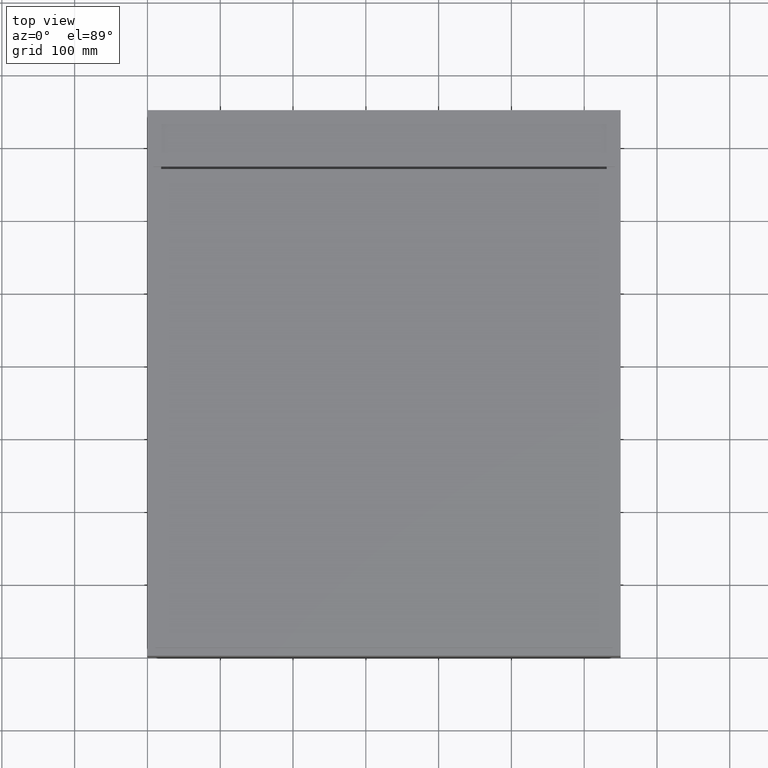
[diagram: clean part render]
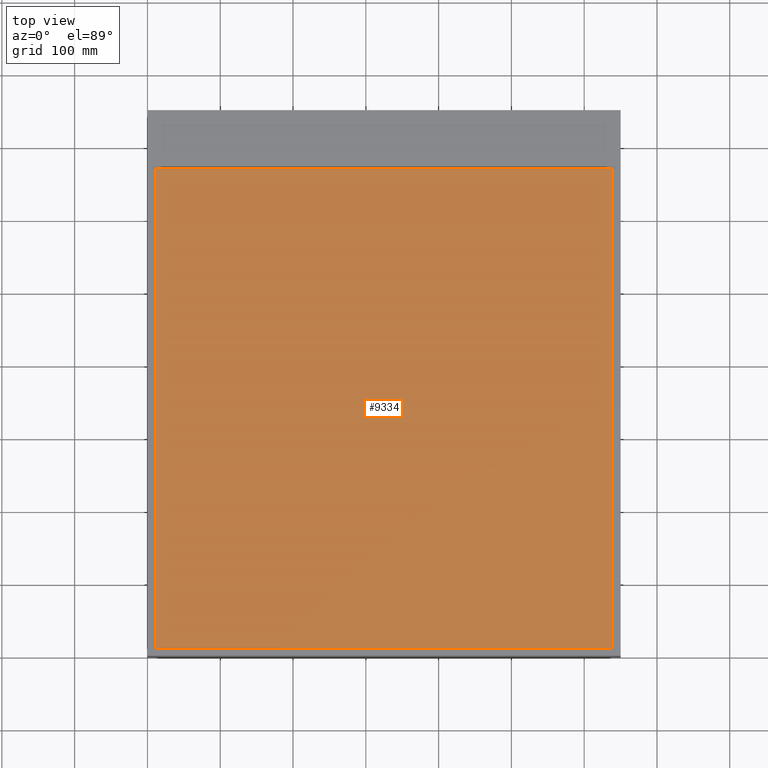
[diagram: same view with one face highlighted and labeled with its STEP entity id]
A machine part, top view. The second image highlights one B-rep face of the part: STEP entity #9334.
In plain terms, the highlighted planar face has unit normal (-0, 0, 1).
Its self-contained STEP definition (entity closure, byte-faithful):
#413 = EDGE_CURVE ( 'NONE', #4525, #1163, #2319, .T. ) ;
#420 = CARTESIAN_POINT ( 'NONE',  ( 11.00000000000012079, 11.00000000000001066, 8.847089727481716182E-14 ) ) ;
#594 = EDGE_CURVE ( 'NONE', #1163, #839, #1060, .T. ) ;
#839 = VERTEX_POINT ( 'NONE', #2293 ) ;
#865 = CARTESIAN_POINT ( 'NONE',  ( 639.0000000000001137, 11.00000000000001066, 8.847089727481716182E-14 ) ) ;
#1014 = ORIENTED_EDGE ( 'NONE', *, *, #594, .T. ) ;
#1060 = LINE ( 'NONE', #4051, #8928 ) ;
#1102 = VECTOR ( 'NONE', #2155, 1000.000000000000000 ) ;
#1163 = VERTEX_POINT ( 'NONE', #8701 ) ;
#2155 = DIRECTION ( 'NONE',  ( 1.000000000000000000, 1.657379117175293497E-17, 0.0000000000000000000 ) ) ;
#2293 = CARTESIAN_POINT ( 'NONE',  ( 11.00000000000001066, 668.9999000000001388, 8.847089727481716182E-14 ) ) ;
#2319 = LINE ( 'NONE', #5269, #4649 ) ;
#2361 = CARTESIAN_POINT ( 'NONE',  ( 0.0000000000000000000, 0.0000000000000000000, 8.847089727481716182E-14 ) ) ;
#2953 = EDGE_CURVE ( 'NONE', #839, #5844, #3664, .T. ) ;
#3664 = LINE ( 'NONE', #6583, #8479 ) ;
#4051 = CARTESIAN_POINT ( 'NONE',  ( 11.00000000000001066, 668.9999000000001388, 8.847089727481716182E-14 ) ) ;
#4090 = AXIS2_PLACEMENT_3D ( 'NONE', #2361, #5313, #8238 ) ;
#4525 = VERTEX_POINT ( 'NONE', #865 ) ;
#4649 = VECTOR ( 'NONE', #8192, 1000.000000000000000 ) ;
#4953 = ORIENTED_EDGE ( 'NONE', *, *, #8414, .T. ) ;
#5269 = CARTESIAN_POINT ( 'NONE',  ( 639.0000000000000000, 668.9999000000001388, 8.847089727481716182E-14 ) ) ;
#5313 = DIRECTION ( 'NONE',  ( -0.0000000000000000000, 0.0000000000000000000, 1.000000000000000000 ) ) ;
#5830 = LINE ( 'NONE', #8766, #1102 ) ;
#5844 = VERTEX_POINT ( 'NONE', #420 ) ;
#6020 = FACE_OUTER_BOUND ( 'NONE', #6238, .T. ) ;
#6238 = EDGE_LOOP ( 'NONE', ( #7775, #4953, #7592, #1014 ) ) ;
#6583 = CARTESIAN_POINT ( 'NONE',  ( 11.00000000000001066, 668.9999000000001388, 8.847089727481716182E-14 ) ) ;
#6964 = DIRECTION ( 'NONE',  ( -1.000000000000000000, -0.0000000000000000000, -0.0000000000000000000 ) ) ;
#7592 = ORIENTED_EDGE ( 'NONE', *, *, #413, .T. ) ;
#7775 = ORIENTED_EDGE ( 'NONE', *, *, #2953, .T. ) ;
#8192 = DIRECTION ( 'NONE',  ( -1.687269290808640588E-16, 1.000000000000000000, -0.0000000000000000000 ) ) ;
#8238 = DIRECTION ( 'NONE',  ( 1.000000000000000000, 0.0000000000000000000, 0.0000000000000000000 ) ) ;
#8414 = EDGE_CURVE ( 'NONE', #5844, #4525, #5830, .T. ) ;
#8479 = VECTOR ( 'NONE', #9537, 1000.000000000000000 ) ;
#8701 = CARTESIAN_POINT ( 'NONE',  ( 639.0000000000000000, 668.9999000000001388, 8.847089727481716182E-14 ) ) ;
#8766 = CARTESIAN_POINT ( 'NONE',  ( 11.00000000000012079, 11.00000000000001066, 8.847089727481716182E-14 ) ) ;
#8928 = VECTOR ( 'NONE', #6964, 1000.000000000000000 ) ;
#8961 = PLANE ( 'NONE',  #4090 ) ;
#9334 = ADVANCED_FACE ( 'NONE', ( #6020 ), #8961, .T. ) ;
#9537 = DIRECTION ( 'NONE',  ( 1.212724802768710415E-16, -1.000000000000000000, 0.0000000000000000000 ) ) ;